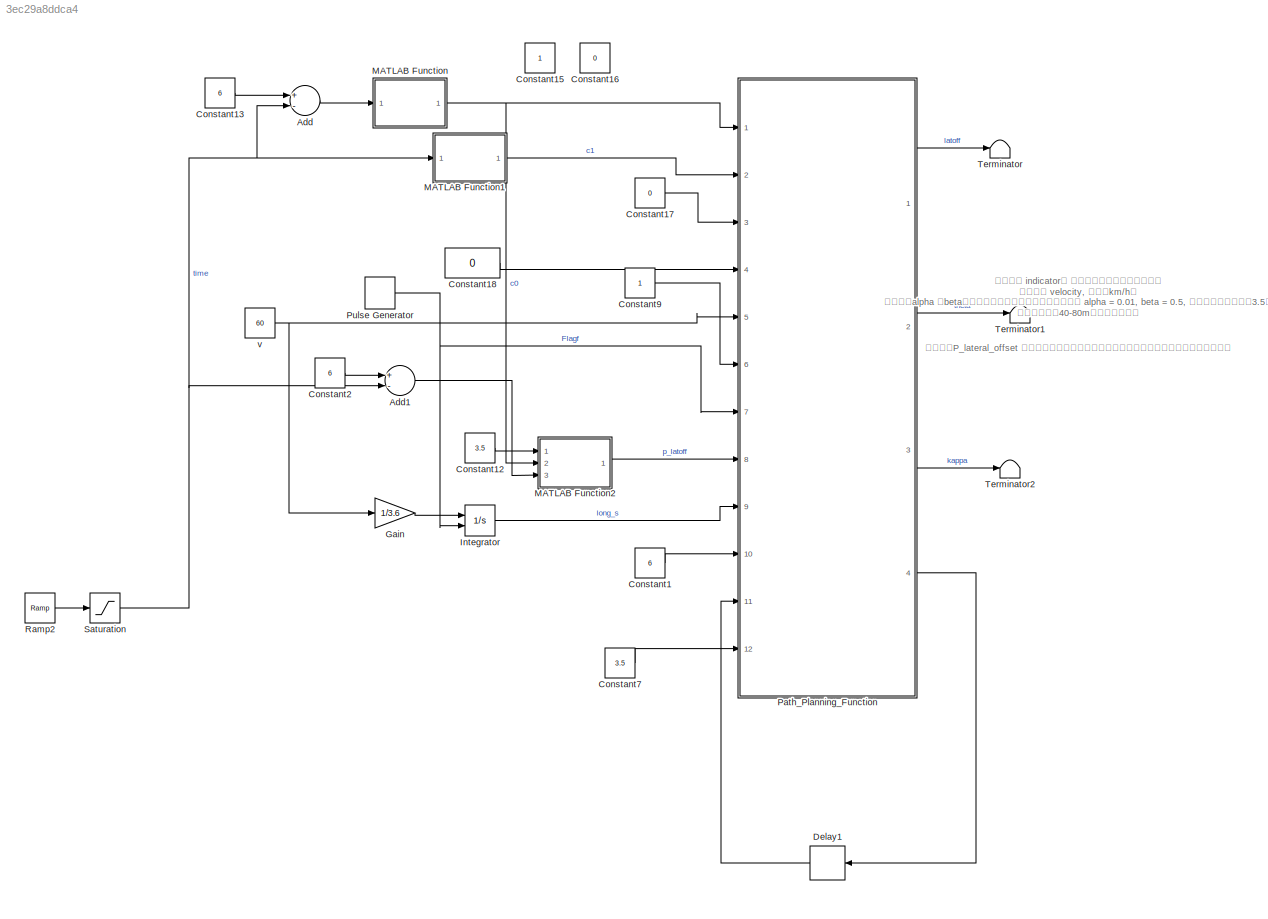
MODEL slx_3ec29a8ddca4
KIND model
CONFIG AbsTol = auto
CONFIG EnableMultiTasking = off
CONFIG FixedStep = 0.001
CONFIG MaxStep = auto
CONFIG MinStep = auto
CONFIG RelTol = 1e-3
CONFIG SampleTimeConstraint = Unconstrained
CONFIG Solver = FixedStepAuto
CONFIG SolverName = FixedStepAuto
CONFIG StartTime = 0.0
CONFIG StopTime = 6
BLOCK [Sum] Add
  InputSameDT = off
  Inputs = +-
  OutDataTypeStr = Inherit: Inherit via internal rule
  Ports = [2, 1]
  SaturateOnIntegerOverflow = off
BLOCK [Sum] Add1
  InputSameDT = off
  Inputs = +-
  OutDataTypeStr = Inherit: Inherit via internal rule
  Ports = [2, 1]
  SaturateOnIntegerOverflow = off
BLOCK [Constant] Constant1
  Value = 6
BLOCK [Constant] Constant12
  Value = 3.5
BLOCK [Constant] Constant13
  Value = 6
BLOCK [Constant] Constant15
  VectorParams1D = off
BLOCK [Constant] Constant16
  Value = 0
BLOCK [Constant] Constant17
  Value = 0
BLOCK [Constant] Constant18
  Value = 0
BLOCK [Constant] Constant2
  Value = 6
BLOCK [Constant] Constant7
  Value = 3.5
BLOCK [Constant] Constant9
BLOCK [Delay] Delay1
  DelayLength = 1
  InitialCondition = zeros(400,8)
  InputPortMap = u0
  Ports = [1, 1]
BLOCK [Gain] Gain
  Gain = 1/3.6
  OutDataTypeStr = Inherit: Inherit via internal rule
  ParamDataTypeStr = Inherit: Inherit via internal rule
  SaturateOnIntegerOverflow = off
BLOCK [Integrator] Integrator
  ExternalReset = rising
  Ports = [2, 1]
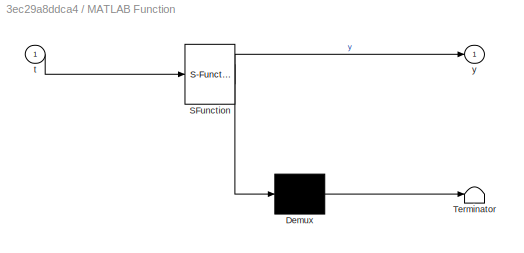
BLOCK [SubSystem] MATLAB Function
  ErrorFcn = Stateflow.Translate.translate
  PermitHierarchicalResolution = ExplicitOnly
  Ports = [1, 1]
  RequestExecContextInheritance = off
  SFBlockType = MATLAB Function
  TreatAsAtomicUnit = on
BLOCK [Demux] MATLAB Function/ Demux 
  Outputs = 1
  Ports = [1, 1]
BLOCK [S-Function] MATLAB Function/ SFunction 
  EnableBusSupport = on
  FunctionName = sf_sfun
  PortCounts = [1 2]
  Ports = [1, 2]
  SFcnIsStateOwnerBlock = off
  SFunctionDeploymentMode = off
  Tag = Stateflow S-Function 2
BLOCK [Terminator] MATLAB Function/ Terminator 
BLOCK [Inport] MATLAB Function/t
  IconDisplay = Port number
BLOCK [Outport] MATLAB Function/y
  IconDisplay = Port number
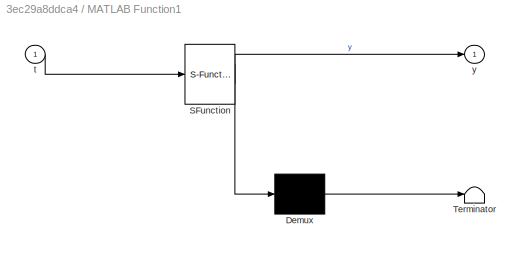
BLOCK [SubSystem] MATLAB Function1
  ErrorFcn = Stateflow.Translate.translate
  PermitHierarchicalResolution = ExplicitOnly
  Ports = [1, 1]
  RequestExecContextInheritance = off
  SFBlockType = MATLAB Function
  TreatAsAtomicUnit = on
BLOCK [Demux] MATLAB Function1/ Demux 
  Outputs = 1
  Ports = [1, 1]
BLOCK [S-Function] MATLAB Function1/ SFunction 
  EnableBusSupport = on
  FunctionName = sf_sfun
  PortCounts = [1 2]
  Ports = [1, 2]
  SFcnIsStateOwnerBlock = off
  SFunctionDeploymentMode = off
  Tag = Stateflow S-Function 1
BLOCK [Terminator] MATLAB Function1/ Terminator 
BLOCK [Inport] MATLAB Function1/t
  IconDisplay = Port number
BLOCK [Outport] MATLAB Function1/y
  IconDisplay = Port number
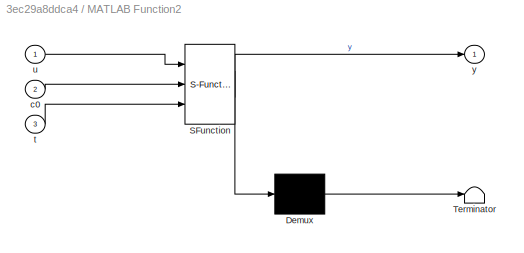
BLOCK [SubSystem] MATLAB Function2
  ErrorFcn = Stateflow.Translate.translate
  PermitHierarchicalResolution = ExplicitOnly
  Ports = [3, 1]
  RequestExecContextInheritance = off
  SFBlockType = MATLAB Function
  TreatAsAtomicUnit = on
BLOCK [Demux] MATLAB Function2/ Demux 
  Outputs = 1
  Ports = [1, 1]
BLOCK [S-Function] MATLAB Function2/ SFunction 
  EnableBusSupport = on
  FunctionName = sf_sfun
  PortCounts = [3 2]
  Ports = [3, 2]
  SFcnIsStateOwnerBlock = off
  SFunctionDeploymentMode = off
  Tag = Stateflow S-Function 3
BLOCK [Terminator] MATLAB Function2/ Terminator 
BLOCK [Inport] MATLAB Function2/c0
  IconDisplay = Port number
  Port = 2
BLOCK [Inport] MATLAB Function2/t
  IconDisplay = Port number
  Port = 3
BLOCK [Inport] MATLAB Function2/u
  IconDisplay = Port number
BLOCK [Outport] MATLAB Function2/y
  IconDisplay = Port number
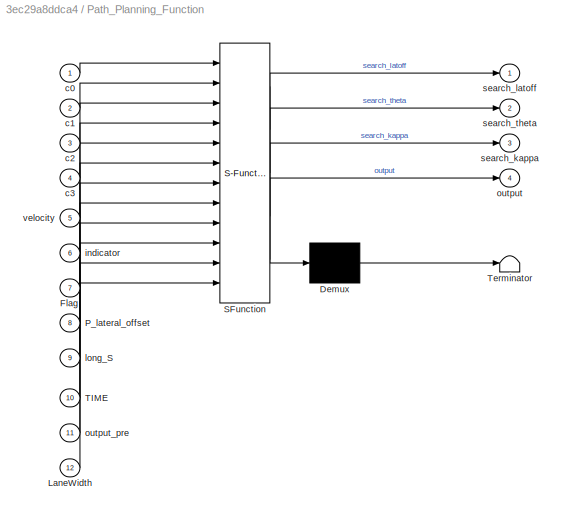
BLOCK [SubSystem] Path_Planning_Function 
  ErrorFcn = Stateflow.Translate.translate
  PermitHierarchicalResolution = ExplicitOnly
  Ports = [12, 4]
  RequestExecContextInheritance = off
  SFBlockType = MATLAB Function
  TreatAsAtomicUnit = on
BLOCK [Demux] Path_Planning_Function / Demux 
  Outputs = 1
  Ports = [1, 1]
BLOCK [S-Function] Path_Planning_Function / SFunction 
  EnableBusSupport = on
  FunctionName = sf_sfun
  PortCounts = [12 5]
  Ports = [12, 5]
  SFcnIsStateOwnerBlock = off
  SFunctionDeploymentMode = off
  Tag = Stateflow S-Function 4
BLOCK [Terminator] Path_Planning_Function / Terminator 
BLOCK [Inport] Path_Planning_Function /Flag
  IconDisplay = Port number
  Port = 7
BLOCK [Inport] Path_Planning_Function /LaneWidth
  IconDisplay = Port number
  Port = 12
BLOCK [Inport] Path_Planning_Function /P_lateral_offset
  IconDisplay = Port number
  Port = 8
BLOCK [Inport] Path_Planning_Function /TIME
  IconDisplay = Port number
  Port = 10
BLOCK [Inport] Path_Planning_Function /c0
  IconDisplay = Port number
BLOCK [Inport] Path_Planning_Function /c1
  IconDisplay = Port number
  Port = 2
BLOCK [Inport] Path_Planning_Function /c2
  IconDisplay = Port number
  Port = 3
BLOCK [Inport] Path_Planning_Function /c3
  IconDisplay = Port number
  Port = 4
BLOCK [Inport] Path_Planning_Function /indicator
  IconDisplay = Port number
  Port = 6
BLOCK [Inport] Path_Planning_Function /long_S
  IconDisplay = Port number
  Port = 9
BLOCK [Outport] Path_Planning_Function /output
  IconDisplay = Port number
  Port = 4
BLOCK [Inport] Path_Planning_Function /output_pre
  IconDisplay = Port number
  Port = 11
BLOCK [Outport] Path_Planning_Function /search_kappa
  IconDisplay = Port number
  Port = 3
BLOCK [Outport] Path_Planning_Function /search_latoff
  IconDisplay = Port number
BLOCK [Outport] Path_Planning_Function /search_theta
  IconDisplay = Port number
  Port = 2
BLOCK [Inport] Path_Planning_Function /velocity
  IconDisplay = Port number
  Port = 5
BLOCK [DiscretePulseGenerator] Pulse Generator
  Period = 2500
  Ports = [0, 1]
  SampleTime = 0.001
BLOCK [Reference] Ramp2  REF=simulink/Sources/Ramp
  Ports = [0, 1]
  SourceBlock = simulink/Sources/Ramp
  SourceProductBaseCode = SL
  SourceProductName = Simulink
  SourceType = Ramp
BLOCK [Saturate] Saturation
  InputPortMap = u0
  LowerLimit = 1
  Ports = [1, 1]
  UpperLimit = 6
BLOCK [Terminator] Terminator
BLOCK [Terminator] Terminator1
BLOCK [Terminator] Terminator2
BLOCK [Constant] v 
  Value = 60
ANNOTATION (root): 输入量： indicator， 向左变道需要为正，右为负。 输入量： velocity, 单位为km/h。 表定量：alpha 和beta是曲线平滑模块的参数，暂时推荐使用 alpha = 0.01, beta = 0.5, 测试效果在横向偏移3.5， 纵向规划距离40-80m效果可以接受。 表定量：P_lateral_offset 是向横向偏移的绝对值，该值取决于路宽和期望的横向偏移的距离。 表定量：P_MAX_ITER 曲线优化的终止条件,这里暂时设置为10000步。 表定量：P_TOL 优化后的曲线与原曲线之间可以接受的最大偏移量，这里推荐使用0.7m 表定量：P_MAX_KAPPA 曲线的优化目标，希望将曲线的曲率下降到某个值以下，这里推荐是用0.002,也就是曲率半径500m.
LINE Add1:1 -> MATLAB Function2:3
LINE Add:1 -> MATLAB Function:1
LINE Constant12:1 -> MATLAB Function2:1
LINE Constant13:1 -> Add:1
LINE Constant17:1 -> Path_Planning_Function :3
LINE Constant18:1 -> Path_Planning_Function :4
LINE Constant1:1 -> Path_Planning_Function :10
LINE Constant2:1 -> Add1:1
LINE Constant7:1 -> Path_Planning_Function :12
LINE Constant9:1 -> Path_Planning_Function :6
LINE Delay1:1 -> Path_Planning_Function :11
LINE Gain:1 -> Integrator:1
LINE Integrator:1 -> Path_Planning_Function :9
LINE MATLAB Function1:1 -> Path_Planning_Function :2
LINE MATLAB Function2:1 -> Path_Planning_Function :8
NET MATLAB Function:1 -> MATLAB Function2:2, Path_Planning_Function :1
LINE Path_Planning_Function :1 -> Terminator:1
LINE Path_Planning_Function :2 -> Terminator1:1
LINE Path_Planning_Function :3 -> Terminator2:1
LINE Path_Planning_Function :4 -> Delay1:1
NET Pulse Generator:1 -> Integrator:2, Path_Planning_Function :7
LINE Ramp2:1 -> Saturation:1
NET Saturation:1 -> Add1:2, Add:2, MATLAB Function1:1
NET v :1 -> Gain:1, Path_Planning_Function :5
note: NET lines group one-source signal fan-out (src -> all destinations, sorted); 1:1 wires keep LINE
CHART MATLAB Function1 states=1 transitions=1
  STATE_LABEL 'eML_blk_kernel()'
  STATE_LABEL 'SCRIPT:\nfunction y = fcn(t)\n    if t>= 0 && t <= 3\n        y =  0.07 / 3 * t;\n    else\n        y =  - 0.07 / 3 * (t - 6);\n    end\nend\n'
CHART MATLAB Function states=1 transitions=1
  STATE_LABEL 'eML_blk_kernel()'
  STATE_LABEL 'SCRIPT:\nfunction y = fcn(t)\n    if t>= 0 && t <= 3\n        y =  1.5 / 3 * t;\n    else\n        y = -3  + 1.5 / 3 * t;\n    end\nend\n'
CHART MATLAB Function2 states=1 transitions=1
  STATE_LABEL 'eML_blk_kernel()'
  STATE_LABEL 'SCRIPT:\nfunction y = fcn(u,c0,t)\n    if t>=0 && t <= 3\n        y = u - c0;\n    else\n        y = abs(c0);\n    end\nend\n\n'
CHART Path_Planning_Function
 states=1 transitions=1
  STATE_LABEL 'eML_blk_kernel()'
  STATE_LABEL 'SCRIPT:\nfunction [search_latoff,search_theta,search_kappa,output] = LineGeneration(c0,c1,c2,c3,velocity,...\n    indicator,Flag,P_lateral_offset,long_S,TIME,output_pre,LaneWidth)\n   %% the main function, which is used to generate changing lane curve dynamically    \n    output = output_pre;\n    search_latoff = 0;\n    search_theta = 0;\n    search_kappa = 0;\n    velocity_ms = velocity /3.6 ;\n   \n    \n...<+3608ch>'
